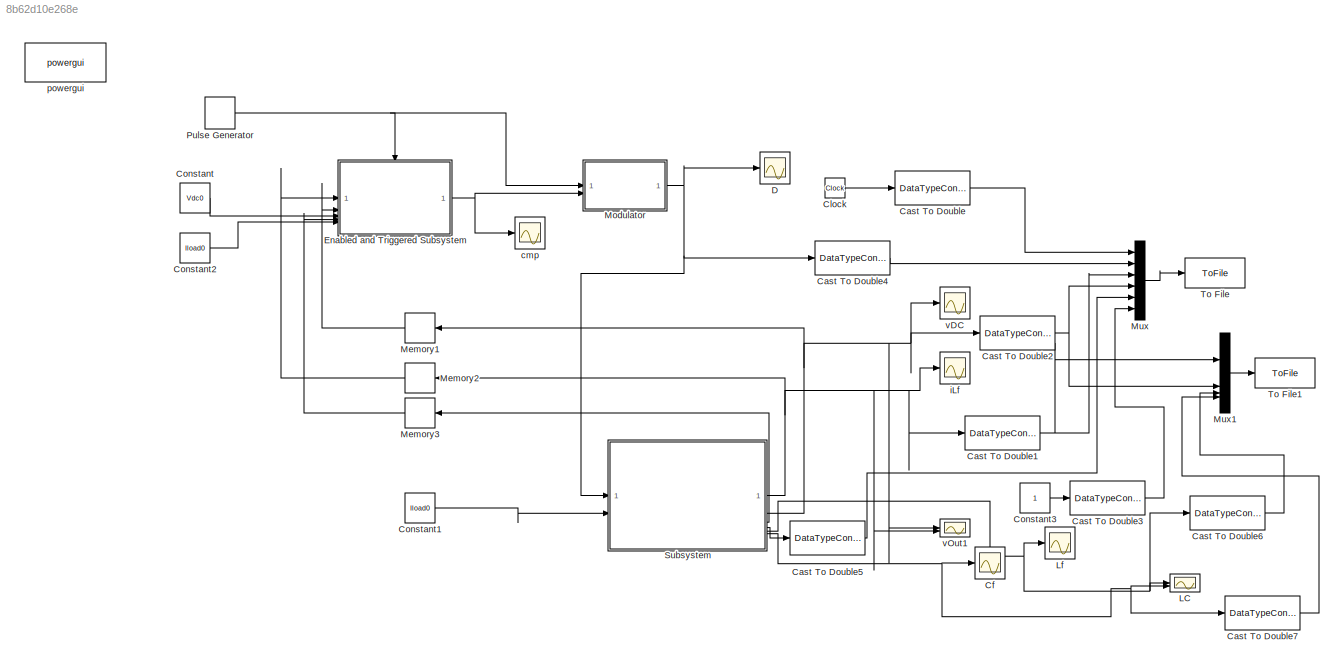
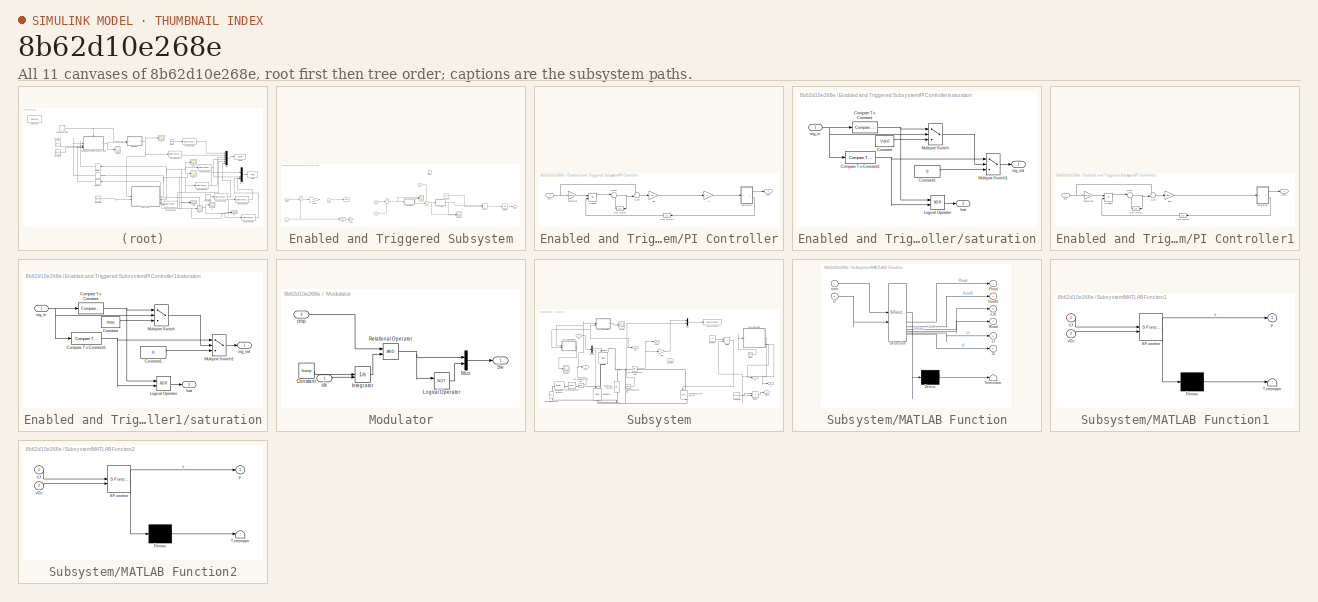
[diagram: thumbnail index - all 11 canvases of the model, root first then tree order]
MODEL slx_8b62d10e268e
KIND model
CONFIG AbsTol = auto
CONFIG EnableMultiTasking = off
CONFIG FixedStep = 2.5e-5
CONFIG MaxStep = 5e-7
CONFIG MinStep = auto
CONFIG RelTol = 1e-3
CONFIG SampleTimeConstraint = Unconstrained
CONFIG SolverName = FixedStepAuto
CONFIG StartTime = 0.0
CONFIG StopTime = 3.25
BLOCK [DataTypeConversion] Cast To Double
  OutDataTypeStr = double
  RndMeth = Floor
  SaturateOnIntegerOverflow = off
BLOCK [DataTypeConversion] Cast To Double1
  OutDataTypeStr = double
  RndMeth = Floor
  SaturateOnIntegerOverflow = off
BLOCK [DataTypeConversion] Cast To Double2
  OutDataTypeStr = double
  RndMeth = Floor
  SaturateOnIntegerOverflow = off
BLOCK [DataTypeConversion] Cast To Double3
  OutDataTypeStr = double
  RndMeth = Floor
  SaturateOnIntegerOverflow = off
BLOCK [DataTypeConversion] Cast To Double4
  OutDataTypeStr = double
  RndMeth = Floor
  SaturateOnIntegerOverflow = off
BLOCK [DataTypeConversion] Cast To Double5
  OutDataTypeStr = double
  RndMeth = Floor
  SaturateOnIntegerOverflow = off
BLOCK [DataTypeConversion] Cast To Double6
  OutDataTypeStr = double
  RndMeth = Floor
  SaturateOnIntegerOverflow = off
BLOCK [DataTypeConversion] Cast To Double7
  OutDataTypeStr = double
  RndMeth = Floor
  SaturateOnIntegerOverflow = off
BLOCK [Scope] Cf
  Floating = off
  NumInputPorts = 1
  ScopeSpecificationString = Simulink.scopes.TimeScopeBlockCfg('CurrentConfiguration', extmgr.ConfigurationSet(extmgr.Configuration('Core','General UI',true),extmgr.Configuration('Core','Source UI',true),extmgr.Configuration('Sources','WiredSimulink',true,'DataLoggingVariableName','ScopeData2'),extmgr.Configuration('Visuals','Time Domain',true,'SerializedDisplays',{struct('MinYLimReal','0.00006','MaxYLimReal','0.00023','YLabe...<+1533ch>
BLOCK [Clock] Clock
BLOCK [Constant] Constant
  Value = Vdc0
BLOCK [Constant] Constant1
  Value = Iload0
BLOCK [Constant] Constant2
  Value = Iload0
BLOCK [Constant] Constant3
BLOCK [Scope] D
  Floating = off
  NumInputPorts = 1
  ScopeSpecificationString = Simulink.scopes.TimeScopeBlockCfg('CurrentConfiguration', extmgr.ConfigurationSet(extmgr.Configuration('Core','General UI',true),extmgr.Configuration('Core','Source UI',true),extmgr.Configuration('Sources','WiredSimulink',true,'DataLoggingVariableName','ScopeData1'),extmgr.Configuration('Visuals','Time Domain',true,'SerializedDisplays',{struct('MinYLimReal','-0.125','MaxYLimReal','1.125','YLabelRe...<+1534ch>
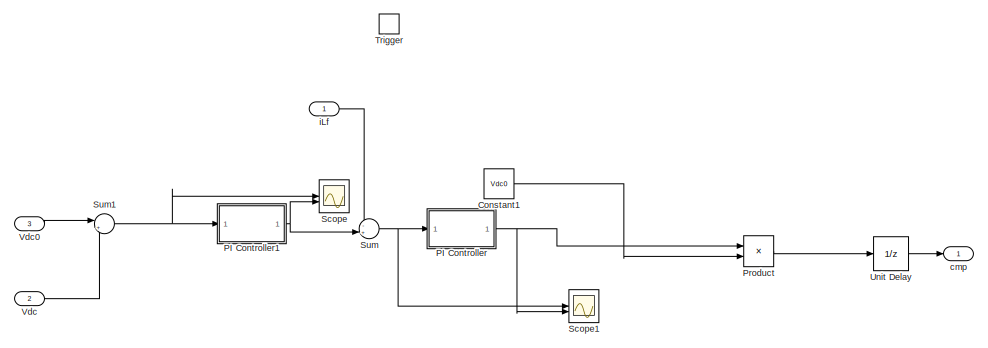
[diagram: Enabled and Triggered Subsystem - part 1/2, right side, full height]
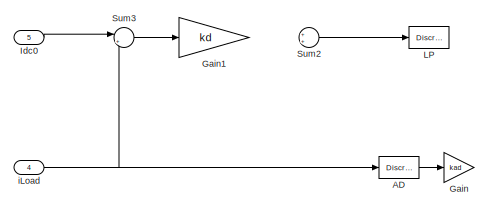
[diagram: Enabled and Triggered Subsystem - part 2/2, bottom left region]
BLOCK [SubSystem] Enabled and Triggered Subsystem
  TreatAsAtomicUnit = on
BLOCK [DiscreteTransferFcn] Enabled and Triggered Subsystem/AD
  Commented = on
  Denominator = DenAD
  InputPortMap = u0
  Numerator = NumAD
BLOCK [Constant] Enabled and Triggered Subsystem/Constant1
  Value = Vdc0
BLOCK [Gain] Enabled and Triggered Subsystem/Gain
  Commented = on
  Gain = kad
BLOCK [Gain] Enabled and Triggered Subsystem/Gain1
  Commented = on
  Gain = kd
BLOCK [Inport] Enabled and Triggered Subsystem/Idc0
  Port = 5
BLOCK [DiscreteTransferFcn] Enabled and Triggered Subsystem/LP
  Commented = on
  Denominator = DenLP
  InputPortMap = u0
  Numerator = NumLP
BLOCK [SubSystem] Enabled and Triggered Subsystem/PI Controller
BLOCK [Gain] Enabled and Triggered Subsystem/PI Controller/-1
  Gain = -1
BLOCK [Outport] Enabled and Triggered Subsystem/PI Controller/Out1
  VectorParamsAs1DForOutWhenUnconnected = off
BLOCK [Product] Enabled and Triggered Subsystem/PI Controller/Product
  OutDataTypeStr = double
  RndMeth = Zero
BLOCK [Sum] Enabled and Triggered Subsystem/PI Controller/Sum
  Inputs = ++|
BLOCK [Sum] Enabled and Triggered Subsystem/PI Controller/Sum1
  Inputs = |++
BLOCK [Gain] Enabled and Triggered Subsystem/PI Controller/Tsamp//Tni
  Gain = Tsamp/Tni
  OutDataTypeStr = double
BLOCK [UnitDelay] Enabled and Triggered Subsystem/PI Controller/Unit Delay
  HasFrameUpgradeWarning = on
  SampleTime = -1
BLOCK [UnitDelay] Enabled and Triggered Subsystem/PI Controller/Unit Delay1
  HasFrameUpgradeWarning = on
  SampleTime = -1
BLOCK [Inport] Enabled and Triggered Subsystem/PI Controller/eIn
BLOCK [Gain] Enabled and Triggered Subsystem/PI Controller/kpi
  Gain = kpi
BLOCK [SubSystem] Enabled and Triggered Subsystem/PI Controller/saturation
BLOCK [Outport] Enabled and Triggered Subsystem/PI Controller/saturation/!sat
  Port = 2
  VectorParamsAs1DForOutWhenUnconnected = off
BLOCK [Reference] Enabled and Triggered Subsystem/PI Controller/saturation/Compare To Constant  REF=simulink/Logic and Bit
Operations/Compare
To Constant
  SourceBlock = simulink/Logic and Bit\nOperations/Compare\nTo Constant
  SourceType = Compare To Constant
BLOCK [Reference] Enabled and Triggered Subsystem/PI Controller/saturation/Compare To Constant1  REF=simulink/Logic and Bit
Operations/Compare
To Constant
  SourceBlock = simulink/Logic and Bit\nOperations/Compare\nTo Constant
  SourceType = Compare To Constant
BLOCK [Constant] Enabled and Triggered Subsystem/PI Controller/saturation/Constant
  Value = Vdc0
BLOCK [Constant] Enabled and Triggered Subsystem/PI Controller/saturation/Constant1
  Value = 0
BLOCK [Logic] Enabled and Triggered Subsystem/PI Controller/saturation/Logical Operator
  AllPortsSameDT = off
  Operator = NOR
  OutDataTypeStr = boolean
BLOCK [MultiPortSwitch] Enabled and Triggered Subsystem/PI Controller/saturation/Multiport Switch
  DataPortOrder = Zero-based contiguous
  InputSameDT = off
  Inputs = 2
  SaturateOnIntegerOverflow = off
  zeroidx = on
BLOCK [MultiPortSwitch] Enabled and Triggered Subsystem/PI Controller/saturation/Multiport Switch1
  DataPortOrder = Zero-based contiguous
  InputSameDT = off
  Inputs = 2
  SaturateOnIntegerOverflow = off
  zeroidx = on
BLOCK [Inport] Enabled and Triggered Subsystem/PI Controller/saturation/sig_in
BLOCK [Outport] Enabled and Triggered Subsystem/PI Controller/saturation/sig_sat
  VectorParamsAs1DForOutWhenUnconnected = off
BLOCK [SubSystem] Enabled and Triggered Subsystem/PI Controller1
BLOCK [Outport] Enabled and Triggered Subsystem/PI Controller1/Out1
  VectorParamsAs1DForOutWhenUnconnected = off
BLOCK [Product] Enabled and Triggered Subsystem/PI Controller1/Product
  OutDataTypeStr = double
  RndMeth = Zero
BLOCK [Sum] Enabled and Triggered Subsystem/PI Controller1/Sum
  Inputs = ++|
BLOCK [Sum] Enabled and Triggered Subsystem/PI Controller1/Sum1
  Inputs = |++
BLOCK [Gain] Enabled and Triggered Subsystem/PI Controller1/Tsamp//Tnu
  Gain = Tsamp/Tnu
  OutDataTypeStr = double
BLOCK [UnitDelay] Enabled and Triggered Subsystem/PI Controller1/Unit Delay
  HasFrameUpgradeWarning = on
  SampleTime = -1
BLOCK [UnitDelay] Enabled and Triggered Subsystem/PI Controller1/Unit Delay1
  HasFrameUpgradeWarning = on
  SampleTime = -1
BLOCK [Inport] Enabled and Triggered Subsystem/PI Controller1/eIn
BLOCK [Gain] Enabled and Triggered Subsystem/PI Controller1/kpu
  Gain = kpu
BLOCK [SubSystem] Enabled and Triggered Subsystem/PI Controller1/saturation
BLOCK [Outport] Enabled and Triggered Subsystem/PI Controller1/saturation/!sat
  Port = 2
  VectorParamsAs1DForOutWhenUnconnected = off
BLOCK [Reference] Enabled and Triggered Subsystem/PI Controller1/saturation/Compare To Constant  REF=simulink/Logic and Bit
Operations/Compare
To Constant
  SourceBlock = simulink/Logic and Bit\nOperations/Compare\nTo Constant
  SourceType = Compare To Constant
BLOCK [Reference] Enabled and Triggered Subsystem/PI Controller1/saturation/Compare To Constant1  REF=simulink/Logic and Bit
Operations/Compare
To Constant
  SourceBlock = simulink/Logic and Bit\nOperations/Compare\nTo Constant
  SourceType = Compare To Constant
BLOCK [Constant] Enabled and Triggered Subsystem/PI Controller1/saturation/Constant
  Value = Imax
BLOCK [Constant] Enabled and Triggered Subsystem/PI Controller1/saturation/Constant1
  Value = 0
BLOCK [Logic] Enabled and Triggered Subsystem/PI Controller1/saturation/Logical Operator
  AllPortsSameDT = off
  Operator = NOR
  OutDataTypeStr = boolean
BLOCK [MultiPortSwitch] Enabled and Triggered Subsystem/PI Controller1/saturation/Multiport Switch
  DataPortOrder = Zero-based contiguous
  InputSameDT = off
  Inputs = 2
  SaturateOnIntegerOverflow = off
  zeroidx = on
BLOCK [MultiPortSwitch] Enabled and Triggered Subsystem/PI Controller1/saturation/Multiport Switch1
  DataPortOrder = Zero-based contiguous
  InputSameDT = off
  Inputs = 2
  SaturateOnIntegerOverflow = off
  zeroidx = on
BLOCK [Inport] Enabled and Triggered Subsystem/PI Controller1/saturation/sig_in
BLOCK [Outport] Enabled and Triggered Subsystem/PI Controller1/saturation/sig_sat
  VectorParamsAs1DForOutWhenUnconnected = off
BLOCK [Product] Enabled and Triggered Subsystem/Product
  Inputs = */
BLOCK [Scope] Enabled and Triggered Subsystem/Scope
  Floating = off
  NumInputPorts = 2
  ScopeSpecificationString = Simulink.scopes.TimeScopeBlockCfg('CurrentConfiguration', extmgr.ConfigurationSet(extmgr.Configuration('Core','General UI',true),extmgr.Configuration('Core','Source UI',true),extmgr.Configuration('Sources','WiredSimulink',true,'DataLoggingVariableName','ScopeData1'),extmgr.Configuration('Visuals','Time Domain',true,'SerializedDisplays',{struct('MinYLimReal','-5.55391','MaxYLimReal','5.09942','YLab...<+2188ch>
BLOCK [Scope] Enabled and Triggered Subsystem/Scope1
  Floating = off
  NumInputPorts = 2
  ScopeSpecificationString = Simulink.scopes.TimeScopeBlockCfg('CurrentConfiguration', extmgr.ConfigurationSet(extmgr.Configuration('Core','General UI',true),extmgr.Configuration('Core','Source UI',true),extmgr.Configuration('Sources','WiredSimulink',true,'DataLoggingVariableName','ScopeData2'),extmgr.Configuration('Visuals','Time Domain',true,'SerializedDisplays',{struct('MinYLimReal','-4.12865','MaxYLimReal','0.47334','YLab...<+2161ch>
BLOCK [Sum] Enabled and Triggered Subsystem/Sum
  Inputs = -+|
BLOCK [Sum] Enabled and Triggered Subsystem/Sum1
  Inputs = |+-
BLOCK [Sum] Enabled and Triggered Subsystem/Sum2
  Commented = on
  Inputs = ++|
BLOCK [Sum] Enabled and Triggered Subsystem/Sum3
  Commented = on
  Inputs = |+-
BLOCK [TriggerPort] Enabled and Triggered Subsystem/Trigger
  StatesWhenEnabling = held
  VariantControl = (inherit)
BLOCK [UnitDelay] Enabled and Triggered Subsystem/Unit Delay
  HasFrameUpgradeWarning = on
  InitialCondition = D0
  SampleTime = -1
BLOCK [Inport] Enabled and Triggered Subsystem/Vdc
  Port = 2
BLOCK [Inport] Enabled and Triggered Subsystem/Vdc0
  Port = 3
BLOCK [Outport] Enabled and Triggered Subsystem/cmp
BLOCK [Inport] Enabled and Triggered Subsystem/iLf
BLOCK [Inport] Enabled and Triggered Subsystem/iLoad
  Port = 4
BLOCK [Scope] LC
  Floating = off
  NumInputPorts = 2
  ScopeSpecificationString = Simulink.scopes.TimeScopeBlockCfg('CurrentConfiguration', extmgr.ConfigurationSet(extmgr.Configuration('Core','General UI',true),extmgr.Configuration('Core','Source UI',true),extmgr.Configuration('Sources','WiredSimulink',true,'DataLoggingVariableName','ScopeData3'),extmgr.Configuration('Visuals','Time Domain',true,'SerializedDisplays',{struct('MinYLimReal','0.00042','MaxYLimReal','0.00279','YLabe...<+2251ch>
BLOCK [Scope] Lf
  Floating = off
  NumInputPorts = 1
  ScopeSpecificationString = Simulink.scopes.TimeScopeBlockCfg('CurrentConfiguration', extmgr.ConfigurationSet(extmgr.Configuration('Core','General UI',true),extmgr.Configuration('Core','Source UI',true),extmgr.Configuration('Sources','WiredSimulink',true,'DataLoggingVariableName','ScopeData1'),extmgr.Configuration('Visuals','Time Domain',true,'SerializedDisplays',{struct('MinYLimReal','-0.0012','MaxYLimReal','0.01613','YLabe...<+1533ch>
BLOCK [Memory] Memory1
BLOCK [Memory] Memory2
BLOCK [Memory] Memory3
BLOCK [SubSystem] Modulator
BLOCK [Constant] Modulator/Constant
  Value = fsamp
BLOCK [Integrator] Modulator/Integrator
  ExternalReset = rising
BLOCK [Logic] Modulator/Logical Operator
  AllPortsSameDT = off
  Operator = NOT
  OutDataTypeStr = boolean
BLOCK [Mux] Modulator/Mux
  DisplayOption = bar
  Inputs = 2
BLOCK [RelationalOperator] Modulator/Relational Operator
  InputSameDT = off
  OutDataTypeStr = boolean
  RndMeth = Simplest
BLOCK [Outport] Modulator/Sw
BLOCK [Inport] Modulator/clk
BLOCK [Inport] Modulator/cmp
  Port = 2
BLOCK [Mux] Mux
  DisplayOption = bar
  Inputs = 6
BLOCK [Mux] Mux1
  DisplayOption = bar
BLOCK [DiscretePulseGenerator] Pulse Generator
  Period = 1/fsamp
  PulseType = Time based
  PulseWidth = 50
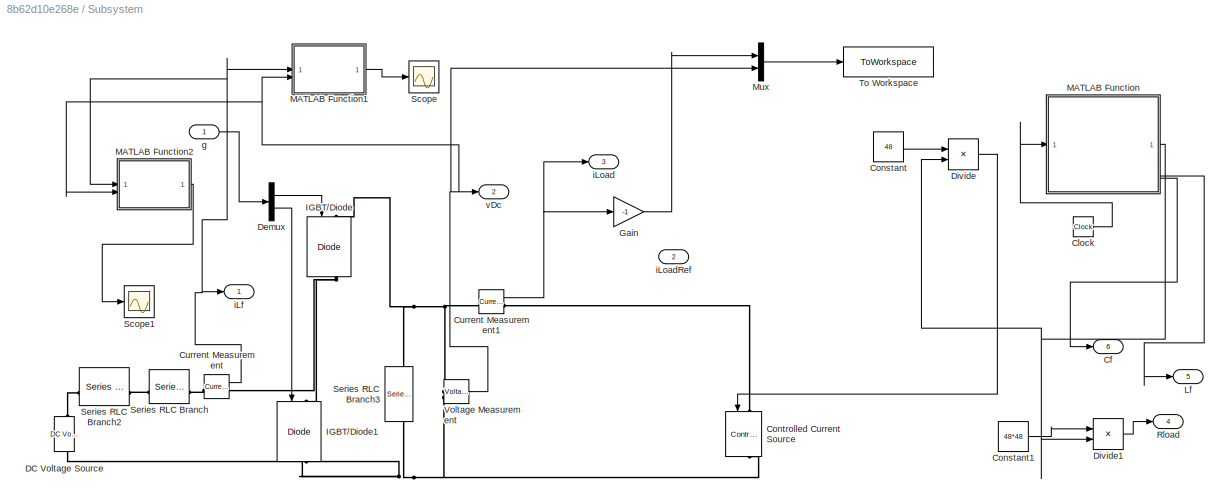
BLOCK [SubSystem] Subsystem
BLOCK [Outport] Subsystem/Cf
  Port = 6
BLOCK [Clock] Subsystem/Clock
BLOCK [Constant] Subsystem/Constant
  Value = 48
BLOCK [Constant] Subsystem/Constant1
  Value = 48*48
BLOCK [Reference] Subsystem/Controlled Current Source  REF=spsControlledCurrentSourceLib/Controlled Current Source
  LibrarySourceBlock = sps_lib/Sources/Controlled Current Source
  NameLocation = top
  SourceBlock = spsControlledCurrentSourceLib/Controlled Current Source
  SourceType = Controlled Current Source
BLOCK [Reference] Subsystem/Current Measurement  REF=spsCurrentMeasurementLib/Current Measurement
  LibrarySourceBlock = sps_lib/Sensors and Measurements/Current Measurement
  SourceBlock = spsCurrentMeasurementLib/Current Measurement
  SourceType = Current Measurement
  UserDataPersistent = on
BLOCK [Reference] Subsystem/Current Measurement1  REF=spsCurrentMeasurementLib/Current Measurement
  LibrarySourceBlock = sps_lib/Sensors and Measurements/Current Measurement
  SourceBlock = spsCurrentMeasurementLib/Current Measurement
  SourceType = Current Measurement
  UserDataPersistent = on
BLOCK [Reference] Subsystem/DC Voltage Source  REF=spsDCVoltageSourceLib/DC Voltage Source
  LibrarySourceBlock = sps_lib/Sources/DC Voltage Source
  SourceBlock = spsDCVoltageSourceLib/DC Voltage Source
  SourceType = DC Voltage Source
BLOCK [Demux] Subsystem/Demux
  Outputs = 2
BLOCK [Product] Subsystem/Divide
  Inputs = /*
BLOCK [Product] Subsystem/Divide1
  Inputs = */
BLOCK [Gain] Subsystem/Gain
  Gain = -1
BLOCK [Reference] Subsystem/IGBT//Diode  REF=spsIGBTDiodeLib/IGBT//Diode
  LibrarySourceBlock = sps_lib/Power Electronics/IGBT//Diode
  NameLocation = left
  SourceBlock = spsIGBTDiodeLib/IGBT//Diode
  SourceType = IGBT/Diode
BLOCK [Reference] Subsystem/IGBT//Diode1  REF=spsIGBTDiodeLib/IGBT//Diode
  LibrarySourceBlock = sps_lib/Power Electronics/IGBT//Diode
  NameLocation = left
  SourceBlock = spsIGBTDiodeLib/IGBT//Diode
  SourceType = IGBT/Diode
BLOCK [Outport] Subsystem/Lf
  Port = 5
BLOCK [SubSystem] Subsystem/MATLAB Function
  ErrorFcn = Stateflow.Translate.translate
  PermitHierarchicalResolution = ExplicitOnly
  SFBlockType = MATLAB Function
  TreatAsAtomicUnit = on
BLOCK [Demux] Subsystem/MATLAB Function/ Demux 
  Outputs = 1
BLOCK [S-Function] Subsystem/MATLAB Function/ SFunction 
  EnableBusSupport = on
  FunctionName = sf_sfun
  PortCounts = [2 7]
  SFcnIsStateOwnerBlock = off
  SFunctionDeploymentMode = off
  Tag = Stateflow S-Function 2
BLOCK [Terminator] Subsystem/MATLAB Function/ Terminator 
BLOCK [Outport] Subsystem/MATLAB Function/Cf
  Port = 6
BLOCK [Inport] Subsystem/MATLAB Function/D
  Port = 2
BLOCK [Outport] Subsystem/MATLAB Function/Iload0
  Port = 2
BLOCK [Outport] Subsystem/MATLAB Function/Lf
  Port = 5
BLOCK [Outport] Subsystem/MATLAB Function/Pload
BLOCK [Outport] Subsystem/MATLAB Function/Rload
  Port = 4
BLOCK [Outport] Subsystem/MATLAB Function/iLf0
  Port = 3
BLOCK [Inport] Subsystem/MATLAB Function/time
BLOCK [SubSystem] Subsystem/MATLAB Function1
  ErrorFcn = Stateflow.Translate.translate
  PermitHierarchicalResolution = ExplicitOnly
  SFBlockType = MATLAB Function
  TreatAsAtomicUnit = on
BLOCK [Demux] Subsystem/MATLAB Function1/ Demux 
  Outputs = 1
BLOCK [S-Function] Subsystem/MATLAB Function1/ SFunction 
  EnableBusSupport = on
  FunctionName = sf_sfun
  PortCounts = [2 2]
  SFcnIsStateOwnerBlock = off
  SFunctionDeploymentMode = off
  Tag = Stateflow S-Function 1
BLOCK [Terminator] Subsystem/MATLAB Function1/ Terminator 
BLOCK [Inport] Subsystem/MATLAB Function1/iLf
BLOCK [Inport] Subsystem/MATLAB Function1/vDc
  Port = 2
BLOCK [Outport] Subsystem/MATLAB Function1/y
BLOCK [SubSystem] Subsystem/MATLAB Function2
  ErrorFcn = Stateflow.Translate.translate
  PermitHierarchicalResolution = ExplicitOnly
  SFBlockType = MATLAB Function
  TreatAsAtomicUnit = on
BLOCK [Demux] Subsystem/MATLAB Function2/ Demux 
  Outputs = 1
BLOCK [S-Function] Subsystem/MATLAB Function2/ SFunction 
  EnableBusSupport = on
  FunctionName = sf_sfun
  PortCounts = [2 2]
  SFcnIsStateOwnerBlock = off
  SFunctionDeploymentMode = off
  Tag = Stateflow S-Function 3
BLOCK [Terminator] Subsystem/MATLAB Function2/ Terminator 
BLOCK [Inport] Subsystem/MATLAB Function2/iLf
BLOCK [Inport] Subsystem/MATLAB Function2/vDc
  Port = 2
BLOCK [Outport] Subsystem/MATLAB Function2/y
BLOCK [Mux] Subsystem/Mux
  DisplayOption = bar
  Inputs = 2
BLOCK [Outport] Subsystem/Rload
  Port = 4
BLOCK [Scope] Subsystem/Scope
  Floating = off
  NumInputPorts = 1
  ScopeSpecificationString = Simulink.scopes.TimeScopeBlockCfg('CurrentConfiguration', extmgr.ConfigurationSet(extmgr.Configuration('Core','General UI',true,'FigureColor',[1 1 1]),extmgr.Configuration('Core','Source UI',true),extmgr.Configuration('Sources','WiredSimulink',true,'DataLoggingVariableName','ScopeData1'),extmgr.Configuration('Visuals','Time Domain',true,'SerializedDisplays',{struct('MinYLimReal','0.00525','MaxYLim...<+1557ch>
BLOCK [Scope] Subsystem/Scope1
  Floating = off
  NumInputPorts = 1
  ScopeSpecificationString = Simulink.scopes.TimeScopeBlockCfg('CurrentConfiguration', extmgr.ConfigurationSet(extmgr.Configuration('Core','General UI',true,'FigureColor',[1 1 1]),extmgr.Configuration('Core','Source UI',true),extmgr.Configuration('Sources','WiredSimulink',true,'DataLoggingVariableName','ScopeData1'),extmgr.Configuration('Visuals','Time Domain',true,'SerializedDisplays',{struct('MinYLimReal','0.000069','MaxYLi...<+1565ch>
BLOCK [Reference] Subsystem/Series RLC Branch  REF=spsSeriesRLCBranchLib/Series RLC Branch
  LibrarySourceBlock = sps_lib/Passives/Series RLC Branch
  SourceBlock = spsSeriesRLCBranchLib/Series RLC Branch
  SourceType = Series RLC Branch
BLOCK [Reference] Subsystem/Series RLC Branch2  REF=spsSeriesRLCBranchLib/Series RLC Branch
  LibrarySourceBlock = sps_lib/Passives/Series RLC Branch
  SourceBlock = spsSeriesRLCBranchLib/Series RLC Branch
  SourceType = Series RLC Branch
BLOCK [Reference] Subsystem/Series RLC Branch3  REF=spsSeriesRLCBranchLib/Series RLC Branch
  LibrarySourceBlock = sps_lib/Passives/Series RLC Branch
  NameLocation = left
  SourceBlock = spsSeriesRLCBranchLib/Series RLC Branch
  SourceType = Series RLC Branch
BLOCK [ToWorkspace] Subsystem/To Workspace
  Commented = on
  FixptAsFi = on
  MaxDataPoints = inf
  SampleTime = Ts
  SaveFormat = Timeseries
  VariableName = boost
BLOCK [Reference] Subsystem/Voltage Measurement  REF=spsVoltageMeasurementLib/Voltage Measurement
  LibrarySourceBlock = sps_lib/Sensors and Measurements/Voltage Measurement
  SourceBlock = spsVoltageMeasurementLib/Voltage Measurement
  SourceType = Voltage Measurement
  UserDataPersistent = on
BLOCK [Inport] Subsystem/g
BLOCK [Outport] Subsystem/iLf
BLOCK [Outport] Subsystem/iLoad
  Port = 3
BLOCK [Inport] Subsystem/iLoadRef
  Port = 2
BLOCK [Outport] Subsystem/vDc
  Port = 2
BLOCK [ToFile] To File
  Filename = <userpath>\Downloads\Boost1.mat
  MatrixName = ans1
BLOCK [ToFile] To File1
  Filename = <userpath>\Downloads\Boost2.mat
  MatrixName = ans1
BLOCK [Scope] cmp
  Floating = off
  NumInputPorts = 1
  ScopeSpecificationString = Simulink.scopes.TimeScopeBlockCfg('CurrentConfiguration', extmgr.ConfigurationSet(extmgr.Configuration('Core','General UI',true),extmgr.Configuration('Core','Source UI',true),extmgr.Configuration('Sources','WiredSimulink',true,'DataLoggingVariableName','ScopeData3'),extmgr.Configuration('Visuals','Time Domain',true,'SerializedDisplays',{struct('MinYLimReal','-0.125','MaxYLimReal','1.125','YLabelRe...<+1513ch>
BLOCK [Scope] iLf
  Floating = off
  NumInputPorts = 1
  ScopeSpecificationString = Simulink.scopes.TimeScopeBlockCfg('CurrentConfiguration', extmgr.ConfigurationSet(extmgr.Configuration('Core','General UI',true),extmgr.Configuration('Core','Source UI',true),extmgr.Configuration('Sources','WiredSimulink',true,'DataLoggingVariableName','ScopeData1'),extmgr.Configuration('Visuals','Time Domain',true,'SerializedDisplays',{struct('MinYLimReal','-2.56339','MaxYLimReal','12.31766','YLa...<+1536ch>
BLOCK [Reference] powergui  REF=sps_lib/powergui
  LibrarySourceBlock = sps_lib/powergui
  Priority = 1
  SourceBlock = sps_lib/powergui
  SourceType = PSB option menu block
BLOCK [Scope] vDC
  Floating = off
  NumInputPorts = 1
  ScopeSpecificationString = Simulink.scopes.TimeScopeBlockCfg('CurrentConfiguration', extmgr.ConfigurationSet(extmgr.Configuration('Core','General UI',true),extmgr.Configuration('Core','Source UI',true),extmgr.Configuration('Sources','WiredSimulink',true,'DataLoggingVariableName','ScopeData2'),extmgr.Configuration('Visuals','Time Domain',true,'SerializedDisplays',{struct('MinYLimReal','31.19388','MaxYLimReal','66.5428','YLab...<+1561ch>
BLOCK [Scope] vOut1
  Floating = off
  NumInputPorts = 2
  ScopeSpecificationString = Simulink.scopes.TimeScopeBlockCfg('CurrentConfiguration', extmgr.ConfigurationSet(extmgr.Configuration('Core','General UI',true),extmgr.Configuration('Core','Source UI',true),extmgr.Configuration('Sources','WiredSimulink',true,'DataLoggingVariableName','ScopeData1'),extmgr.Configuration('Visuals','Time Domain',true,'SerializedDisplays',{struct('MinYLimReal','-5.76979','MaxYLimReal','58.41707','YLa...<+2254ch>
NET Cast To Double1:1 -> Mux1:1, Mux:3
NET Cast To Double2:1 -> Mux1:2, Mux:4
LINE Cast To Double3:1 -> Mux:6
LINE Cast To Double4:1 -> Mux:2
LINE Cast To Double5:1 -> Mux:5
LINE Cast To Double6:1 -> Mux1:3
LINE Cast To Double7:1 -> Mux1:4
LINE Cast To Double:1 -> Mux:1
LINE Clock:1 -> Cast To Double:1
LINE Constant1:1 -> Subsystem:2
LINE Constant2:1 -> Enabled and Triggered Subsystem:5
LINE Constant3:1 -> Cast To Double3:1
LINE Constant:1 -> Enabled and Triggered Subsystem:3
LINE Enabled and Triggered Subsystem/AD:1 -> Enabled and Triggered Subsystem/Gain:1
LINE Enabled and Triggered Subsystem/Constant1:1 -> Enabled and Triggered Subsystem/Product:2
LINE Enabled and Triggered Subsystem/Idc0:1 -> Enabled and Triggered Subsystem/Sum3:1
LINE Enabled and Triggered Subsystem/PI Controller/-1:1 -> Enabled and Triggered Subsystem/PI Controller/saturation:1
LINE Enabled and Triggered Subsystem/PI Controller/Product:1 -> Enabled and Triggered Subsystem/PI Controller/Sum1:1
NET Enabled and Triggered Subsystem/PI Controller/Sum1:1 -> Enabled and Triggered Subsystem/PI Controller/Sum:2, Enabled and Triggered Subsystem/PI Controller/Unit Delay:1
LINE Enabled and Triggered Subsystem/PI Controller/Sum:1 -> Enabled and Triggered Subsystem/PI Controller/kpi:1
LINE Enabled and Triggered Subsystem/PI Controller/Tsamp//Tni:1 -> Enabled and Triggered Subsystem/PI Controller/Product:1
LINE Enabled and Triggered Subsystem/PI Controller/Unit Delay1:1 -> Enabled and Triggered Subsystem/PI Controller/Product:2
LINE Enabled and Triggered Subsystem/PI Controller/Unit Delay:1 -> Enabled and Triggered Subsystem/PI Controller/Sum1:2
NET Enabled and Triggered Subsystem/PI Controller/eIn:1 -> Enabled and Triggered Subsystem/PI Controller/Sum:1, Enabled and Triggered Subsystem/PI Controller/Tsamp//Tni:1
LINE Enabled and Triggered Subsystem/PI Controller/kpi:1 -> Enabled and Triggered Subsystem/PI Controller/-1:1
NET Enabled and Triggered Subsystem/PI Controller/saturation/Compare To Constant1:1 -> Enabled and Triggered Subsystem/PI Controller/saturation/Logical Operator:2, Enabled and Triggered Subsystem/PI Controller/saturation/Multiport Switch1:1
NET Enabled and Triggered Subsystem/PI Controller/saturation/Compare To Constant:1 -> Enabled and Triggered Subsystem/PI Controller/saturation/Logical Operator:1, Enabled and Triggered Subsystem/PI Controller/saturation/Multiport Switch:1
LINE Enabled and Triggered Subsystem/PI Controller/saturation/Constant1:1 -> Enabled and Triggered Subsystem/PI Controller/saturation/Multiport Switch1:3
LINE Enabled and Triggered Subsystem/PI Controller/saturation/Constant:1 -> Enabled and Triggered Subsystem/PI Controller/saturation/Multiport Switch:3
LINE Enabled and Triggered Subsystem/PI Controller/saturation/Logical Operator:1 -> Enabled and Triggered Subsystem/PI Controller/saturation/!sat:1
LINE Enabled and Triggered Subsystem/PI Controller/saturation/Multiport Switch1:1 -> Enabled and Triggered Subsystem/PI Controller/saturation/sig_sat:1
LINE Enabled and Triggered Subsystem/PI Controller/saturation/Multiport Switch:1 -> Enabled and Triggered Subsystem/PI Controller/saturation/Multiport Switch1:2
NET Enabled and Triggered Subsystem/PI Controller/saturation/sig_in:1 -> Enabled and Triggered Subsystem/PI Controller/saturation/Compare To Constant1:1, Enabled and Triggered Subsystem/PI Controller/saturation/Compare To Constant:1, Enabled and Triggered Subsystem/PI Controller/saturation/Multiport Switch:2
LINE Enabled and Triggered Subsystem/PI Controller/saturation:1 -> Enabled and Triggered Subsystem/PI Controller/Out1:1
LINE Enabled and Triggered Subsystem/PI Controller/saturation:2 -> Enabled and Triggered Subsystem/PI Controller/Unit Delay1:1
LINE Enabled and Triggered Subsystem/PI Controller1/Product:1 -> Enabled and Triggered Subsystem/PI Controller1/Sum1:1
NET Enabled and Triggered Subsystem/PI Controller1/Sum1:1 -> Enabled and Triggered Subsystem/PI Controller1/Sum:2, Enabled and Triggered Subsystem/PI Controller1/Unit Delay:1
LINE Enabled and Triggered Subsystem/PI Controller1/Sum:1 -> Enabled and Triggered Subsystem/PI Controller1/kpu:1
LINE Enabled and Triggered Subsystem/PI Controller1/Tsamp//Tnu:1 -> Enabled and Triggered Subsystem/PI Controller1/Product:1
LINE Enabled and Triggered Subsystem/PI Controller1/Unit Delay1:1 -> Enabled and Triggered Subsystem/PI Controller1/Product:2
LINE Enabled and Triggered Subsystem/PI Controller1/Unit Delay:1 -> Enabled and Triggered Subsystem/PI Controller1/Sum1:2
NET Enabled and Triggered Subsystem/PI Controller1/eIn:1 -> Enabled and Triggered Subsystem/PI Controller1/Sum:1, Enabled and Triggered Subsystem/PI Controller1/Tsamp//Tnu:1
LINE Enabled and Triggered Subsystem/PI Controller1/kpu:1 -> Enabled and Triggered Subsystem/PI Controller1/saturation:1
NET Enabled and Triggered Subsystem/PI Controller1/saturation/Compare To Constant1:1 -> Enabled and Triggered Subsystem/PI Controller1/saturation/Logical Operator:2, Enabled and Triggered Subsystem/PI Controller1/saturation/Multiport Switch1:1
NET Enabled and Triggered Subsystem/PI Controller1/saturation/Compare To Constant:1 -> Enabled and Triggered Subsystem/PI Controller1/saturation/Logical Operator:1, Enabled and Triggered Subsystem/PI Controller1/saturation/Multiport Switch:1
LINE Enabled and Triggered Subsystem/PI Controller1/saturation/Constant1:1 -> Enabled and Triggered Subsystem/PI Controller1/saturation/Multiport Switch1:3
LINE Enabled and Triggered Subsystem/PI Controller1/saturation/Constant:1 -> Enabled and Triggered Subsystem/PI Controller1/saturation/Multiport Switch:3
LINE Enabled and Triggered Subsystem/PI Controller1/saturation/Logical Operator:1 -> Enabled and Triggered Subsystem/PI Controller1/saturation/!sat:1
LINE Enabled and Triggered Subsystem/PI Controller1/saturation/Multiport Switch1:1 -> Enabled and Triggered Subsystem/PI Controller1/saturation/sig_sat:1
LINE Enabled and Triggered Subsystem/PI Controller1/saturation/Multiport Switch:1 -> Enabled and Triggered Subsystem/PI Controller1/saturation/Multiport Switch1:2
NET Enabled and Triggered Subsystem/PI Controller1/saturation/sig_in:1 -> Enabled and Triggered Subsystem/PI Controller1/saturation/Compare To Constant1:1, Enabled and Triggered Subsystem/PI Controller1/saturation/Compare To Constant:1, Enabled and Triggered Subsystem/PI Controller1/saturation/Multiport Switch:2
LINE Enabled and Triggered Subsystem/PI Controller1/saturation:1 -> Enabled and Triggered Subsystem/PI Controller1/Out1:1
LINE Enabled and Triggered Subsystem/PI Controller1/saturation:2 -> Enabled and Triggered Subsystem/PI Controller1/Unit Delay1:1
NET Enabled and Triggered Subsystem/PI Controller1:1 -> Enabled and Triggered Subsystem/Scope:2, Enabled and Triggered Subsystem/Sum:2
NET Enabled and Triggered Subsystem/PI Controller:1 -> Enabled and Triggered Subsystem/Product:1, Enabled and Triggered Subsystem/Scope1:2
LINE Enabled and Triggered Subsystem/Product:1 -> Enabled and Triggered Subsystem/Unit Delay:1
NET Enabled and Triggered Subsystem/Sum1:1 -> Enabled and Triggered Subsystem/PI Controller1:1, Enabled and Triggered Subsystem/Scope:1
LINE Enabled and Triggered Subsystem/Sum2:1 -> Enabled and Triggered Subsystem/LP:1
LINE Enabled and Triggered Subsystem/Sum3:1 -> Enabled and Triggered Subsystem/Gain1:1
NET Enabled and Triggered Subsystem/Sum:1 -> Enabled and Triggered Subsystem/PI Controller:1, Enabled and Triggered Subsystem/Scope1:1
LINE Enabled and Triggered Subsystem/Unit Delay:1 -> Enabled and Triggered Subsystem/cmp:1
LINE Enabled and Triggered Subsystem/Vdc0:1 -> Enabled and Triggered Subsystem/Sum1:1
LINE Enabled and Triggered Subsystem/Vdc:1 -> Enabled and Triggered Subsystem/Sum1:2
LINE Enabled and Triggered Subsystem/iLf:1 -> Enabled and Triggered Subsystem/Sum:1
NET Enabled and Triggered Subsystem/iLoad:1 -> Enabled and Triggered Subsystem/AD:1, Enabled and Triggered Subsystem/Sum3:2
NET Enabled and Triggered Subsystem:1 -> Modulator:2, cmp:1
LINE Memory1:1 -> Enabled and Triggered Subsystem:2
LINE Memory2:1 -> Enabled and Triggered Subsystem:1
LINE Memory3:1 -> Enabled and Triggered Subsystem:4
LINE Modulator/Constant:1 -> Modulator/Integrator:1
LINE Modulator/Integrator:1 -> Modulator/Relational Operator:2
LINE Modulator/Logical Operator:1 -> Modulator/Mux:2
LINE Modulator/Mux:1 -> Modulator/Sw:1
NET Modulator/Relational Operator:1 -> Modulator/Logical Operator:1, Modulator/Mux:1
LINE Modulator/clk:1 -> Modulator/Integrator:2
LINE Modulator/cmp:1 -> Modulator/Relational Operator:1
NET Modulator:1 -> Cast To Double4:1, D:1, Subsystem:1
LINE Mux1:1 -> To File1:1
LINE Mux:1 -> To File:1
NET Pulse Generator:1 -> Enabled and Triggered Subsystem:trigger, Modulator:1
LINE Subsystem/Clock:1 -> Subsystem/MATLAB Function:1
LINE Subsystem/Constant1:1 -> Subsystem/Divide1:1
LINE Subsystem/Constant:1 -> Subsystem/Divide:1
NET Subsystem/Current Measurement1:1 -> Subsystem/Gain:1, Subsystem/iLoad:1
NET Subsystem/Current Measurement:1 -> Subsystem/MATLAB Function1:1, Subsystem/MATLAB Function2:1, Subsystem/iLf:1
LINE Subsystem/Demux:1 -> Subsystem/IGBT//Diode:1
LINE Subsystem/Demux:2 -> Subsystem/IGBT//Diode1:1
LINE Subsystem/Divide1:1 -> Subsystem/Rload:1
LINE Subsystem/Divide:1 -> Subsystem/Controlled Current Source:1
LINE Subsystem/Gain:1 -> Subsystem/Mux:1
LINE Subsystem/MATLAB Function1:1 -> Subsystem/Scope:1
LINE Subsystem/MATLAB Function2:1 -> Subsystem/Scope1:1
NET Subsystem/MATLAB Function:1 -> Subsystem/Divide1:2, Subsystem/Divide:2
LINE Subsystem/MATLAB Function:5 -> Subsystem/Lf:1
LINE Subsystem/MATLAB Function:6 -> Subsystem/Cf:1
LINE Subsystem/Mux:1 -> Subsystem/To Workspace:1
NET Subsystem/Voltage Measurement:1 -> Subsystem/MATLAB Function1:2, Subsystem/MATLAB Function2:2, Subsystem/Mux:2, Subsystem/vDc:1
LINE Subsystem/g:1 -> Subsystem/Demux:1
NET Subsystem:1 -> Cast To Double1:1, Memory2:1, iLf:1, vOut1:2
NET Subsystem:2 -> Cast To Double2:1, Memory1:1, vDC:1, vOut1:1
LINE Subsystem:3 -> Memory3:1
LINE Subsystem:4 -> Cast To Double5:1
NET Subsystem:5 -> Cast To Double6:1, LC:1, Lf:1
NET Subsystem:6 -> Cast To Double7:1, Cf:1, LC:2
PLINE Subsystem/Controlled Current Source:LConn1 -- Subsystem/Current Measurement1:RConn1
PNET net1: Subsystem/Controlled Current Source:RConn1 -- Subsystem/DC Voltage Source:LConn1 -- Subsystem/IGBT//Diode1:RConn1 -- Subsystem/Series RLC Branch3:RConn1 -- Subsystem/Voltage Measurement:LConn2
PNET net2: Subsystem/Current Measurement1:LConn1 -- Subsystem/IGBT//Diode:LConn1 -- Subsystem/Series RLC Branch3:LConn1 -- Subsystem/Voltage Measurement:LConn1
PLINE Subsystem/Current Measurement:LConn1 -- Subsystem/Series RLC Branch:RConn1
PNET net3: Subsystem/Current Measurement:RConn1 -- Subsystem/IGBT//Diode1:LConn1 -- Subsystem/IGBT//Diode:RConn1
PLINE Subsystem/DC Voltage Source:RConn1 -- Subsystem/Series RLC Branch2:LConn1
PLINE Subsystem/Series RLC Branch2:RConn1 -- Subsystem/Series RLC Branch:LConn1
note: NET lines group one-source signal fan-out (src -> all destinations, sorted); 1:1 wires keep LINE; PNET lines group multi-terminal physical nets as a canonical sorted terminal list (undirected conserving connections); 2-terminal nets keep the pairwise PLINE form
CHART Subsystem/MATLAB Function1 states=1 transitions=1
  STATE_LABEL 'eML_blk_kernel()'
  STATE_LABEL 'SCRIPT:\nfunction y = predictOutput(iLf, vDc)\n    \n    coder.extrinsic(\'pyrun\');\n    \n    persistent model;\n    \n    y = 0.0;\n    \n    if isempty(model)\n        % Use pyrun to load the model with weights_only=False\n        pyrun(\'import torch; model = torch.load("<userpath>/Downloads/ml models/ Lmodel.pth", weights_only=False)\');\n        model = pyrun(\'model\', \'model\'); \n    end\n    \n    pyrun(\'imp...<+377ch>'
CHART Subsystem/MATLAB Function states=1 transitions=1
  STATE_LABEL 'eML_blk_kernel()'
  STATE_LABEL 'SCRIPT:\nfunction [Pload, Iload0, iLf0, Rload, Lf, Cf] = updateParameters(time, D)\n    % Define the base sampling time (seconds)\n    Ts = 2.5e-5;     \n    % Number of samples for each Pload value\n    samples_per_P = 1000;\n    \n    % Generate Pload values from 70 to 200 (inclusive)\n    Pload_values = 10:1:170;\n    \n    % Calculate the time interval for each Pload value\n    interval = samples_per_P *...<+1017ch>'
CHART Subsystem/MATLAB Function2 states=1 transitions=1
  STATE_LABEL 'eML_blk_kernel()'
  STATE_LABEL 'SCRIPT:\nfunction y = predictOutput(iLf, vDc)\n    \n    coder.extrinsic(\'pyrun\');\n    \n    persistent model;\n    \n    y = 0.0;\n    \n    if isempty(model)\n        % Use pyrun to load the model with weights_only=False\n        pyrun(\'import torch; model = torch.load("<userpath>/Downloads/ml models/ Cmodel.pth", weights_only=False)\');\n        model = pyrun(\'model\', \'model\'); \n    end\n    \n    pyrun(\'imp...<+377ch>'
CHART  states=0 transitions=0
CHART  states=0 transitions=0
CHART  states=0 transitions=0
